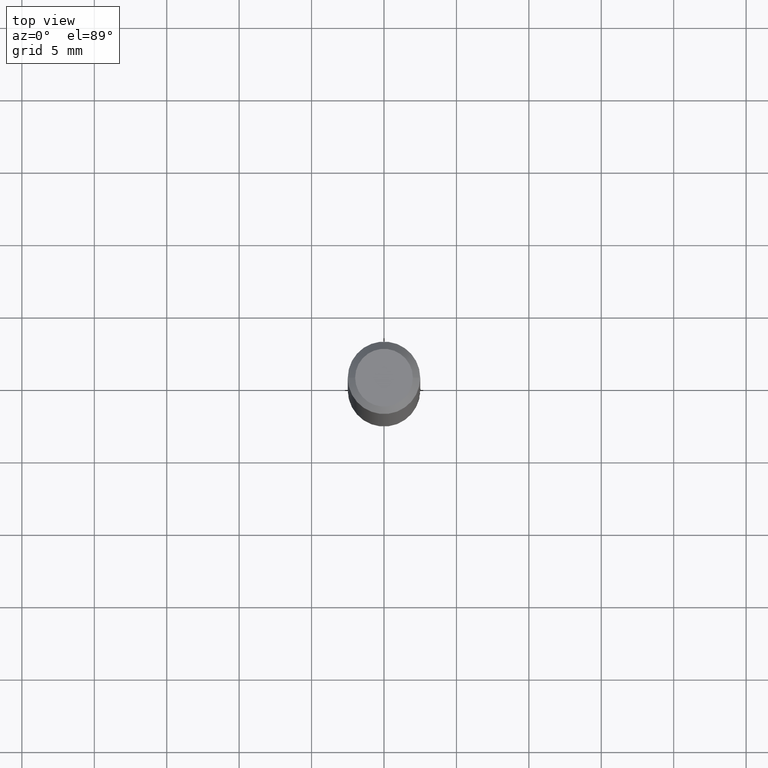
[diagram: clean part render]
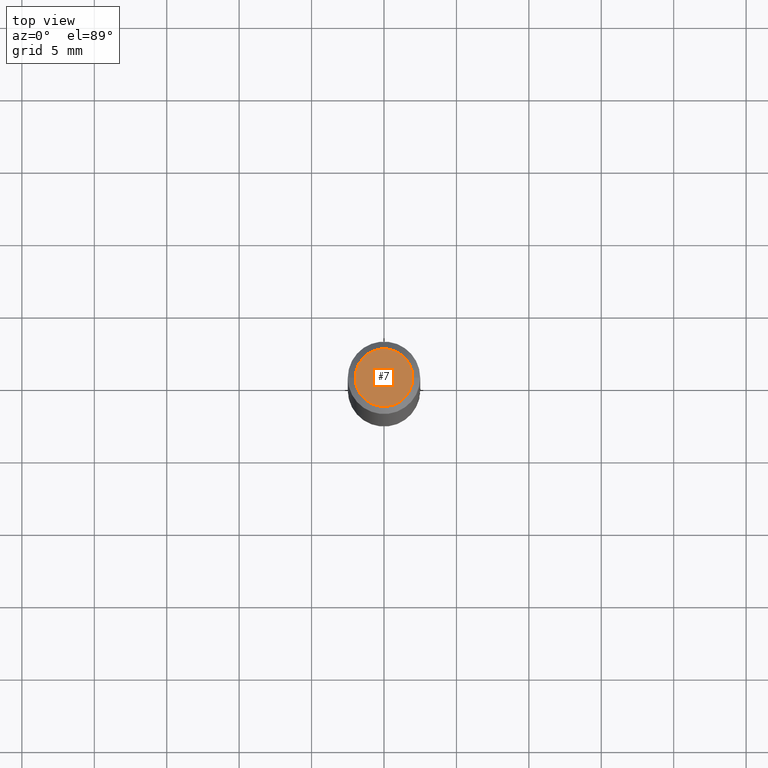
[diagram: same view with one face highlighted and labeled with its STEP entity id]
A machine part, top view. The second image highlights one B-rep face of the part: STEP entity #7.
In plain terms, the highlighted planar face has unit normal (0, -0, -1).
Its self-contained STEP definition (entity closure, byte-faithful):
#7 = ADVANCED_FACE ( 'NONE', ( #17 ), #233, .F. ) ;
#9 = DIRECTION ( 'NONE',  ( 1.000000000000000000, -6.982962677686265922E-15, 4.876176775795935793E-29 ) ) ;
#17 = FACE_OUTER_BOUND ( 'NONE', #262, .T. ) ;
#32 = CARTESIAN_POINT ( 'NONE',  ( 0.000000000000000000, 0.000000000000000000, 0.000000000000000000 ) ) ;
#35 = CARTESIAN_POINT ( 'NONE',  ( 0.07844999999999985318, -6.417258612913222427E-16, 4.159044147803933312E-30 ) ) ;
#47 = CIRCLE ( 'NONE', #145, 0.07844999999999985318 ) ;
#90 = DIRECTION ( 'NONE',  ( -2.445468806185136597E-29, 3.491481338843145583E-15, 1.000000000000000000 ) ) ;
#127 = CIRCLE ( 'NONE', #299, 0.07844999999999985318 ) ;
#145 = AXIS2_PLACEMENT_3D ( 'NONE', #148, #90, #9 ) ;
#148 = CARTESIAN_POINT ( 'NONE',  ( 0.000000000000000000, 0.000000000000000000, 0.000000000000000000 ) ) ;
#170 = DIRECTION ( 'NONE',  ( -1.000000000000000000, 6.982962677686265922E-15, -4.876176775795935793E-29 ) ) ;
#233 = PLANE ( 'NONE',  #328 ) ;
#255 = VERTEX_POINT ( 'NONE', #341 ) ;
#262 = EDGE_LOOP ( 'NONE', ( #296, #275 ) ) ;
#275 = ORIENTED_EDGE ( 'NONE', *, *, #320, .T. ) ;
#282 = CARTESIAN_POINT ( 'NONE',  ( 5.478134220644865553E-16, 0.07844999999999985318, -2.739067110322442144E-16 ) ) ;
#283 = VERTEX_POINT ( 'NONE', #35 ) ;
#296 = ORIENTED_EDGE ( 'NONE', *, *, #344, .T. ) ;
#298 = DIRECTION ( 'NONE',  ( -2.445468806185136597E-29, 3.491481338843145583E-15, 1.000000000000000000 ) ) ;
#299 = AXIS2_PLACEMENT_3D ( 'NONE', #32, #298, #343 ) ;
#305 = DIRECTION ( 'NONE',  ( 2.438088387897960049E-29, -3.491481338843145188E-15, -1.000000000000000000 ) ) ;
#320 = EDGE_CURVE ( 'NONE', #283, #255, #127, .T. ) ;
#328 = AXIS2_PLACEMENT_3D ( 'NONE', #282, #305, #170 ) ;
#341 = CARTESIAN_POINT ( 'NONE',  ( -0.07844999999999985318, 5.827282354529176128E-16, -3.953055038153092165E-30 ) ) ;
#343 = DIRECTION ( 'NONE',  ( 1.000000000000000000, -6.982962677686265922E-15, 4.876176775795935793E-29 ) ) ;
#344 = EDGE_CURVE ( 'NONE', #255, #283, #47, .T. ) ;